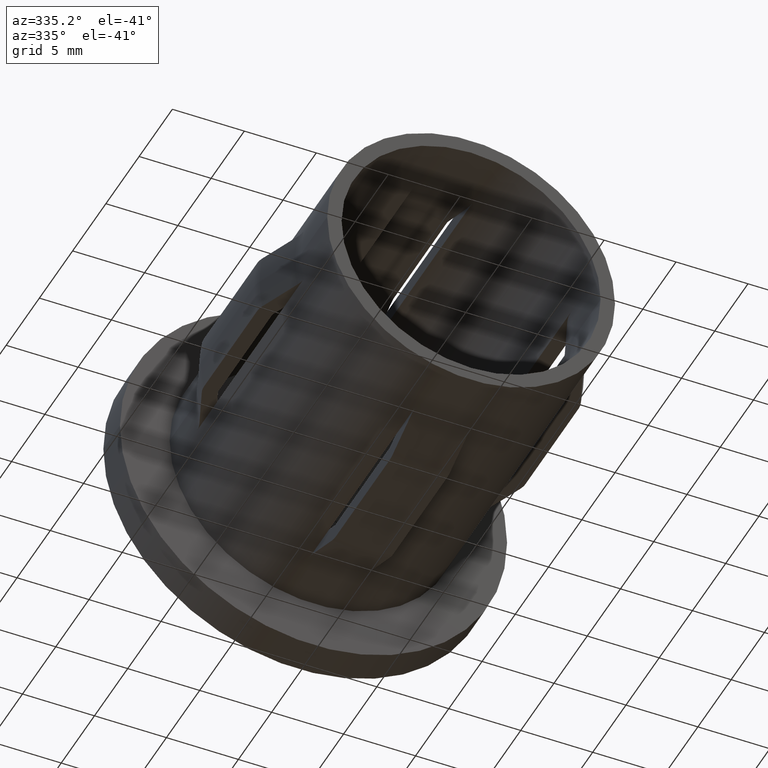
[diagram: clean part render]
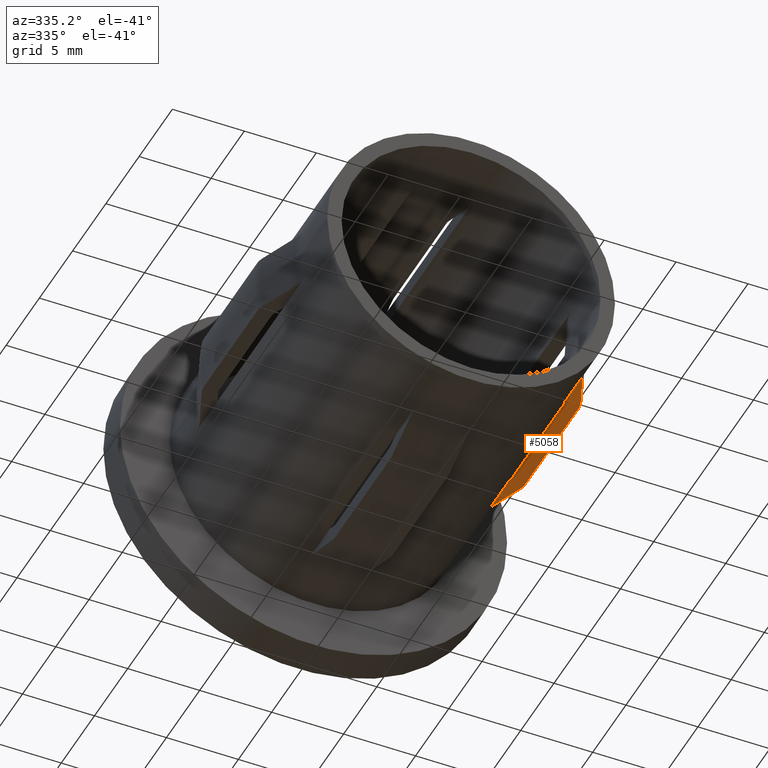
[diagram: same view with one face highlighted and labeled with its STEP entity id]
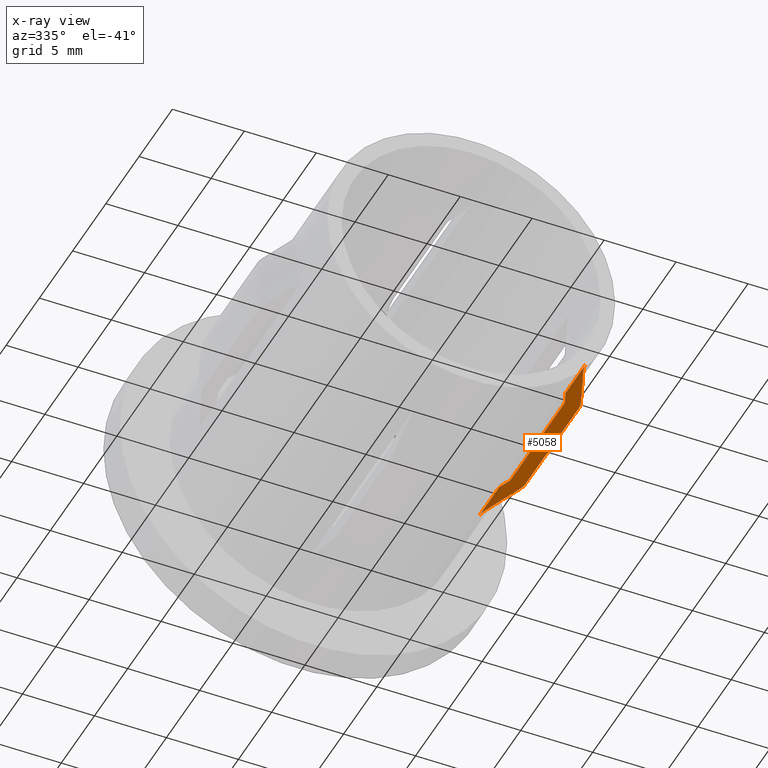
[diagram: x-ray of the same camera — body ghosted, the highlighted face saturated]
A machine part, auxiliary view. The second image highlights one B-rep face of the part: STEP entity #5058.
The next image is the same camera in x-ray: the body ghosted, the highlighted face saturated — about 11% of this face is hidden behind the body in this view.
In plain terms, the highlighted planar face has unit normal (-0, 0, -1).
Its self-contained STEP definition (entity closure, byte-faithful):
#223 = CARTESIAN_POINT ( 'NONE',  ( 10.11953454286264176, 16.18307244216502383, -1.999999999999999556 ) ) ;
#289 = CARTESIAN_POINT ( 'NONE',  ( 9.797958971132716854, 7.015645617351633057, -1.999999999999999556 ) ) ;
#293 = CARTESIAN_POINT ( 'NONE',  ( 9.842567161742284298, 19.62848780160619810, -1.999999999999999556 ) ) ;
#308 = CARTESIAN_POINT ( 'NONE',  ( 11.17239902617159331, 16.09322562860274175, -2.000000000000000000 ) ) ;
#329 = CARTESIAN_POINT ( 'NONE',  ( 10.01239959393601531, 7.549810798328967287, -1.999999999999999556 ) ) ;
#440 = VERTEX_POINT ( 'NONE', #4805 ) ;
#634 = CARTESIAN_POINT ( 'NONE',  ( 11.06656428066493447, 7.450782673504927622, -2.000000000000000000 ) ) ;
#851 = VERTEX_POINT ( 'NONE', #1675 ) ;
#1066 = DIRECTION ( 'NONE',  ( -1.000000000000000000, 0.000000000000000000, 1.891242924590527653E-16 ) ) ;
#1290 = EDGE_CURVE ( 'NONE', #4185, #11211, #12411, .T. ) ;
#1415 = CARTESIAN_POINT ( 'NONE',  ( 9.797958971132716854, 16.98435438264836606, -1.999999999999999556 ) ) ;
#1452 = EDGE_CURVE ( 'NONE', #9666, #2878, #6864, .T. ) ;
#1475 = CARTESIAN_POINT ( 'NONE',  ( 10.15492491355795579, 26.19999999999999929, -1.999999999999999556 ) ) ;
#1540 = EDGE_CURVE ( 'NONE', #4934, #440, #8630, .T. ) ;
#1601 = VERTEX_POINT ( 'NONE', #3562 ) ;
#1675 = CARTESIAN_POINT ( 'NONE',  ( 10.15492491355795401, 16.00000000000000000, -1.999999999999999556 ) ) ;
#1951 = DIRECTION ( 'NONE',  ( -0.000000000000000000, -1.000000000000000000, -0.000000000000000000 ) ) ;
#2141 = CARTESIAN_POINT ( 'NONE',  ( 11.17239902617159686, 7.999999999999996447, -2.000000000000000000 ) ) ;
#2203 = EDGE_LOOP ( 'NONE', ( #10039, #3445, #13327, #6080, #8195, #11183, #7041, #8349, #2508, #11380, #8606, #5435, #12722, #13208 ) ) ;
#2283 = EDGE_CURVE ( 'NONE', #8569, #4185, #12146, .T. ) ;
#2328 = CARTESIAN_POINT ( 'NONE',  ( 9.797958971132716854, 20.00000000000000000, -1.999999999999999556 ) ) ;
#2508 = ORIENTED_EDGE ( 'NONE', *, *, #13348, .T. ) ;
#2514 = CARTESIAN_POINT ( 'NONE',  ( 9.797958971132709749, 19.90700090560225632, -2.000000000000000000 ) ) ;
#2706 = CARTESIAN_POINT ( 'NONE',  ( 10.14007719829634269, 7.876124206073741085, -1.999999999999999556 ) ) ;
#2747 = EDGE_CURVE ( 'NONE', #4550, #2790, #12994, .T. ) ;
#2764 = DIRECTION ( 'NONE',  ( 7.347880794884120229E-17, 1.000000000000000000, -0.000000000000000000 ) ) ;
#2790 = VERTEX_POINT ( 'NONE', #4265 ) ;
#2878 = VERTEX_POINT ( 'NONE', #12112 ) ;
#3333 = CARTESIAN_POINT ( 'NONE',  ( -3.782485849181050870E-16, 20.00000000000000000, -1.999999999999997780 ) ) ;
#3445 = ORIENTED_EDGE ( 'NONE', *, *, #10604, .T. ) ;
#3464 = CARTESIAN_POINT ( 'NONE',  ( 9.904247285403716461, 19.45078267350492851, -1.999999999999999556 ) ) ;
#3469 = CARTESIAN_POINT ( 'NONE',  ( 11.10110147967452576, 7.537159761207298025, -2.000000000000000000 ) ) ;
#3561 = CARTESIAN_POINT ( 'NONE',  ( 11.16342588300238248, 7.812136628820095297, -2.000000000000000000 ) ) ;
#3562 = CARTESIAN_POINT ( 'NONE',  ( 10.15492491355795401, 7.999999999999996447, -1.999999999999999556 ) ) ;
#3767 = CARTESIAN_POINT ( 'NONE',  ( 10.29237573940761941, 5.516129468413099701, -1.999999999999999556 ) ) ;
#3912 = CARTESIAN_POINT ( 'NONE',  ( 11.06656428066493092, 16.54921732649506794, -2.000000000000000000 ) ) ;
#4185 = VERTEX_POINT ( 'NONE', #5479 ) ;
#4225 = CARTESIAN_POINT ( 'NONE',  ( 9.797958971132716854, 7.015645617351633057, -1.999999999999999556 ) ) ;
#4265 = CARTESIAN_POINT ( 'NONE',  ( 9.797958971132716854, 16.98435438264836606, -1.999999999999999556 ) ) ;
#4366 = PLANE ( 'NONE',  #9110 ) ;
#4550 = VERTEX_POINT ( 'NONE', #2328 ) ;
#4563 = CARTESIAN_POINT ( 'NONE',  ( 9.905209545021021356, 16.71728404803340950, -1.999999999999999556 ) ) ;
#4588 = CARTESIAN_POINT ( 'NONE',  ( 10.15492491355795401, 16.00000000000000000, -1.999999999999999556 ) ) ;
#4614 = CARTESIAN_POINT ( 'NONE',  ( 10.01239957746317621, 16.45018924274232930, -1.999999999999999556 ) ) ;
#4635 = CARTESIAN_POINT ( 'NONE',  ( 10.15192419693579851, 16.06264647095272835, -1.999999999999999556 ) ) ;
#4664 = LINE ( 'NONE', #1475, #6796 ) ;
#4671 = CARTESIAN_POINT ( 'NONE',  ( 9.797958971132716854, 4.000000000000000000, -1.999999999999999556 ) ) ;
#4796 = EDGE_CURVE ( 'NONE', #1601, #851, #4664, .T. ) ;
#4805 = CARTESIAN_POINT ( 'NONE',  ( 9.797958971132716854, 4.000000000000000000, -1.999999999999999556 ) ) ;
#4934 = VERTEX_POINT ( 'NONE', #4225 ) ;
#5046 = B_SPLINE_CURVE_WITH_KNOTS ( 'NONE', 3,
 ( #2141, #12902, #3561, #6550, #3469, #13123 ),
 .UNSPECIFIED., .F., .F.,
 ( 4, 2, 4 ),
 ( 0.009178170362421101194, 0.009457246294020837940, 0.009736322225620572951 ),
 .UNSPECIFIED. ) ;
#5058 = ADVANCED_FACE ( 'NONE', ( #7455 ), #4366, .T. ) ;
#5232 = B_SPLINE_CURVE_WITH_KNOTS ( 'NONE', 3,
 ( #9932, #4614, #4563, #1415 ),
 .UNSPECIFIED., .F., .F.,
 ( 4, 4 ),
 ( 0.005088502465085590655, 0.005951904398614323889 ),
 .UNSPECIFIED. ) ;
#5279 = EDGE_CURVE ( 'NONE', #851, #8064, #5293, .T. ) ;
#5293 = B_SPLINE_CURVE_WITH_KNOTS ( 'NONE', 3,
 ( #4588, #10976, #4635, #13088, #6698, #223 ),
 .UNSPECIFIED., .F., .F.,
 ( 4, 2, 4 ),
 ( 0.003068065895467891272, 0.003161166058285862224, 0.003254266221103832742 ),
 .UNSPECIFIED. ) ;
#5328 = DIRECTION ( 'NONE',  ( -1.891242924590527653E-16, 0.000000000000000000, -1.000000000000000000 ) ) ;
#5338 = CARTESIAN_POINT ( 'NONE',  ( 11.06656428066493092, 16.54921732649506794, -2.000000000000000000 ) ) ;
#5387 = DIRECTION ( 'NONE',  ( -0.000000000000000000, -1.000000000000000000, -0.000000000000000000 ) ) ;
#5423 = VECTOR ( 'NONE', #5387, 1000.000000000000000 ) ;
#5435 = ORIENTED_EDGE ( 'NONE', *, *, #5279, .T. ) ;
#5479 = CARTESIAN_POINT ( 'NONE',  ( 11.17239902617159686, 16.00000000000000000, -2.000000000000000000 ) ) ;
#5681 = CARTESIAN_POINT ( 'NONE',  ( 11.17239902617159686, 16.00000000000000000, -2.000000000000000000 ) ) ;
#5766 = CARTESIAN_POINT ( 'NONE',  ( 10.15492491355798954, 7.968953404545845665, -1.999999999999999556 ) ) ;
#5778 = CARTESIAN_POINT ( 'NONE',  ( 11.10152579295110442, 16.46177903677992660, -2.000000000000000000 ) ) ;
#5808 = CARTESIAN_POINT ( 'NONE',  ( 10.13123126509573346, 7.846090688737153762, -2.000000000000000000 ) ) ;
#5855 = CARTESIAN_POINT ( 'NONE',  ( 9.797958971132713302, 4.093610231952389711, -1.999999999999999556 ) ) ;
#5947 = CARTESIAN_POINT ( 'NONE',  ( 10.11953454286264176, 16.18307244216502383, -1.999999999999999556 ) ) ;
#6080 = ORIENTED_EDGE ( 'NONE', *, *, #1290, .T. ) ;
#6113 = CARTESIAN_POINT ( 'NONE',  ( 10.67974257665458460, 17.51665340152830197, -2.000000000000000000 ) ) ;
#6191 = VERTEX_POINT ( 'NONE', #11318 ) ;
#6550 = CARTESIAN_POINT ( 'NONE',  ( 11.12765054216598593, 7.627079996768373782, -2.000000000000000000 ) ) ;
#6681 = CARTESIAN_POINT ( 'NONE',  ( 9.797958971132716854, 20.00000000000000000, -1.999999999999999556 ) ) ;
#6698 = CARTESIAN_POINT ( 'NONE',  ( 10.13108986453847926, 16.15426186156535238, -1.999999999999999556 ) ) ;
#6796 = VECTOR ( 'NONE', #2764, 1000.000000000000000 ) ;
#6825 = CARTESIAN_POINT ( 'NONE',  ( 9.869599064229127805, 4.462901094319946971, -2.000000000000000000 ) ) ;
#6842 = EDGE_CURVE ( 'NONE', #4550, #12031, #13140, .T. ) ;
#6864 = B_SPLINE_CURVE_WITH_KNOTS ( 'NONE', 3,
 ( #634, #7970, #3767, #11229 ),
 .UNSPECIFIED., .F., .F.,
 ( 4, 4 ),
 ( 0.003697416208786471863, 0.006823125340962740877 ),
 .UNSPECIFIED. ) ;
#7041 = ORIENTED_EDGE ( 'NONE', *, *, #7985, .T. ) ;
#7455 = FACE_OUTER_BOUND ( 'NONE', #2203, .T. ) ;
#7970 = CARTESIAN_POINT ( 'NONE',  ( 10.67974286554496466, 6.483347320982793427, -2.000000000000000000 ) ) ;
#7985 = EDGE_CURVE ( 'NONE', #2878, #440, #13233, .T. ) ;
#7994 = CARTESIAN_POINT ( 'NONE',  ( 11.17239902617159686, 7.999999999999996447, -2.000000000000000000 ) ) ;
#8064 = VERTEX_POINT ( 'NONE', #5947 ) ;
#8135 = B_SPLINE_CURVE_WITH_KNOTS ( 'NONE', 3,
 ( #9948, #5808, #2706, #11119, #5766, #11160 ),
 .UNSPECIFIED., .F., .F.,
 ( 4, 2, 4 ),
 ( 0.003066235172411232914, 0.003159356318355742259, 0.003252477464300251603 ),
 .UNSPECIFIED. ) ;
#8195 = ORIENTED_EDGE ( 'NONE', *, *, #11020, .T. ) ;
#8349 = ORIENTED_EDGE ( 'NONE', *, *, #1540, .F. ) ;
#8436 = CARTESIAN_POINT ( 'NONE',  ( 11.17239902617159686, 20.00000000000000000, -2.000000000000000000 ) ) ;
#8569 = VERTEX_POINT ( 'NONE', #11506 ) ;
#8606 = ORIENTED_EDGE ( 'NONE', *, *, #4796, .T. ) ;
#8613 = CARTESIAN_POINT ( 'NONE',  ( 9.797958971132716854, 20.00000000000000000, -1.999999999999999556 ) ) ;
#8630 = LINE ( 'NONE', #8613, #11458 ) ;
#8777 = CARTESIAN_POINT ( 'NONE',  ( 9.869383963736474641, 19.53763476765028528, -1.999999999999999556 ) ) ;
#9074 = CARTESIAN_POINT ( 'NONE',  ( 9.842721256630492022, 4.372087550889158791, -1.999999999999999556 ) ) ;
#9110 = AXIS2_PLACEMENT_3D ( 'NONE', #3333, #5328, #1066 ) ;
#9270 = CARTESIAN_POINT ( 'NONE',  ( 9.904247285403716461, 19.45078267350492851, -1.999999999999999556 ) ) ;
#9527 = B_SPLINE_CURVE_WITH_KNOTS ( 'NONE', 3,
 ( #289, #12192, #329, #11059 ),
 .UNSPECIFIED., .F., .F.,
 ( 4, 4 ),
 ( 0.005618429196874582914, 0.006481830348075972616 ),
 .UNSPECIFIED. ) ;
#9666 = VERTEX_POINT ( 'NONE', #11354 ) ;
#9932 = CARTESIAN_POINT ( 'NONE',  ( 10.11953454286264176, 16.18307244216502383, -1.999999999999999556 ) ) ;
#9948 = CARTESIAN_POINT ( 'NONE',  ( 10.11953454286264353, 7.816927557834975282, -1.999999999999999556 ) ) ;
#10039 = ORIENTED_EDGE ( 'NONE', *, *, #6842, .T. ) ;
#10091 = CARTESIAN_POINT ( 'NONE',  ( 9.904247285403716461, 4.549217326495067049, -1.999999999999999556 ) ) ;
#10164 = VECTOR ( 'NONE', #1951, 1000.000000000000000 ) ;
#10248 = CARTESIAN_POINT ( 'NONE',  ( 10.29237549371326210, 18.48387114366480688, -1.999999999999999556 ) ) ;
#10404 = EDGE_CURVE ( 'NONE', #8064, #2790, #5232, .T. ) ;
#10604 = EDGE_CURVE ( 'NONE', #12031, #8569, #13482, .T. ) ;
#10976 = CARTESIAN_POINT ( 'NONE',  ( 10.15492491355795401, 16.03143943620876044, -2.000000000000000000 ) ) ;
#11020 = EDGE_CURVE ( 'NONE', #11211, #9666, #5046, .T. ) ;
#11059 = CARTESIAN_POINT ( 'NONE',  ( 10.11953454286264353, 7.816927557834975282, -1.999999999999999556 ) ) ;
#11119 = CARTESIAN_POINT ( 'NONE',  ( 10.15200159054134765, 7.937952132629534141, -1.999999999999999556 ) ) ;
#11157 = CARTESIAN_POINT ( 'NONE',  ( 9.807005181833478247, 4.187881684595618381, -1.999999999999999556 ) ) ;
#11160 = CARTESIAN_POINT ( 'NONE',  ( 10.15492491355795401, 7.999999999999996447, -1.999999999999999556 ) ) ;
#11163 = EDGE_CURVE ( 'NONE', #6191, #1601, #8135, .T. ) ;
#11183 = ORIENTED_EDGE ( 'NONE', *, *, #1452, .T. ) ;
#11211 = VERTEX_POINT ( 'NONE', #7994 ) ;
#11229 = CARTESIAN_POINT ( 'NONE',  ( 9.904247285403716461, 4.549217326495067049, -1.999999999999999556 ) ) ;
#11318 = CARTESIAN_POINT ( 'NONE',  ( 10.11953454286264353, 7.816927557834975282, -1.999999999999999556 ) ) ;
#11354 = CARTESIAN_POINT ( 'NONE',  ( 11.06656428066493447, 7.450782673504927622, -2.000000000000000000 ) ) ;
#11380 = ORIENTED_EDGE ( 'NONE', *, *, #11163, .T. ) ;
#11458 = VECTOR ( 'NONE', #12806, 1000.000000000000000 ) ;
#11506 = CARTESIAN_POINT ( 'NONE',  ( 11.06656428066493092, 16.54921732649506794, -2.000000000000000000 ) ) ;
#12031 = VERTEX_POINT ( 'NONE', #13826 ) ;
#12112 = CARTESIAN_POINT ( 'NONE',  ( 9.904247285403716461, 4.549217326495067049, -1.999999999999999556 ) ) ;
#12146 = B_SPLINE_CURVE_WITH_KNOTS ( 'NONE', 3,
 ( #5338, #5778, #13182, #13228, #308, #5681 ),
 .UNSPECIFIED., .F., .F.,
 ( 4, 2, 4 ),
 ( 0.009228134653958644865, 0.009507604369013822332, 0.009787074084069001534 ),
 .UNSPECIFIED. ) ;
#12192 = CARTESIAN_POINT ( 'NONE',  ( 9.905209594273456375, 7.282716074612691770, -1.999999999999999556 ) ) ;
#12411 = LINE ( 'NONE', #8436, #5423 ) ;
#12586 = CARTESIAN_POINT ( 'NONE',  ( 9.797958971132716854, 20.00000000000000000, -1.999999999999999556 ) ) ;
#12722 = ORIENTED_EDGE ( 'NONE', *, *, #10404, .T. ) ;
#12806 = DIRECTION ( 'NONE',  ( -0.000000000000000000, -1.000000000000000000, -0.000000000000000000 ) ) ;
#12902 = CARTESIAN_POINT ( 'NONE',  ( 11.17239902617159686, 7.905634531635933548, -2.000000000000000000 ) ) ;
#12973 = CARTESIAN_POINT ( 'NONE',  ( 9.806909189345113020, 19.81283433236644242, -1.999999999999999556 ) ) ;
#12994 = LINE ( 'NONE', #12586, #10164 ) ;
#13088 = CARTESIAN_POINT ( 'NONE',  ( 10.13993076491808054, 16.12443400360529466, -1.999999999999999556 ) ) ;
#13123 = CARTESIAN_POINT ( 'NONE',  ( 11.06656428066493447, 7.450782673504927622, -2.000000000000000000 ) ) ;
#13140 = B_SPLINE_CURVE_WITH_KNOTS ( 'NONE', 3,
 ( #6681, #2514, #12973, #293, #8777, #3464 ),
 .UNSPECIFIED., .F., .F.,
 ( 4, 2, 4 ),
 ( 0.008968220500043389345, 0.009246976005533164705, 0.009525731511022940065 ),
 .UNSPECIFIED. ) ;
#13182 = CARTESIAN_POINT ( 'NONE',  ( 11.12809745347671964, 16.37119638700743351, -2.000000000000000000 ) ) ;
#13208 = ORIENTED_EDGE ( 'NONE', *, *, #2747, .F. ) ;
#13228 = CARTESIAN_POINT ( 'NONE',  ( 11.16364817161380962, 16.18611424721108349, -2.000000000000000000 ) ) ;
#13233 = B_SPLINE_CURVE_WITH_KNOTS ( 'NONE', 3,
 ( #10091, #6825, #9074, #11157, #5855, #4671 ),
 .UNSPECIFIED., .F., .F.,
 ( 4, 2, 4 ),
 ( 0.008967388632891528863, 0.009246196399759380041, 0.009525004166627229485 ),
 .UNSPECIFIED. ) ;
#13327 = ORIENTED_EDGE ( 'NONE', *, *, #2283, .T. ) ;
#13348 = EDGE_CURVE ( 'NONE', #4934, #6191, #9527, .T. ) ;
#13482 = B_SPLINE_CURVE_WITH_KNOTS ( 'NONE', 3,
 ( #9270, #10248, #6113, #3912 ),
 .UNSPECIFIED., .F., .F.,
 ( 4, 4 ),
 ( 0.003697520185613038541, 0.006823228327818839541 ),
 .UNSPECIFIED. ) ;
#13826 = CARTESIAN_POINT ( 'NONE',  ( 9.904247285403716461, 19.45078267350492851, -1.999999999999999556 ) ) ;